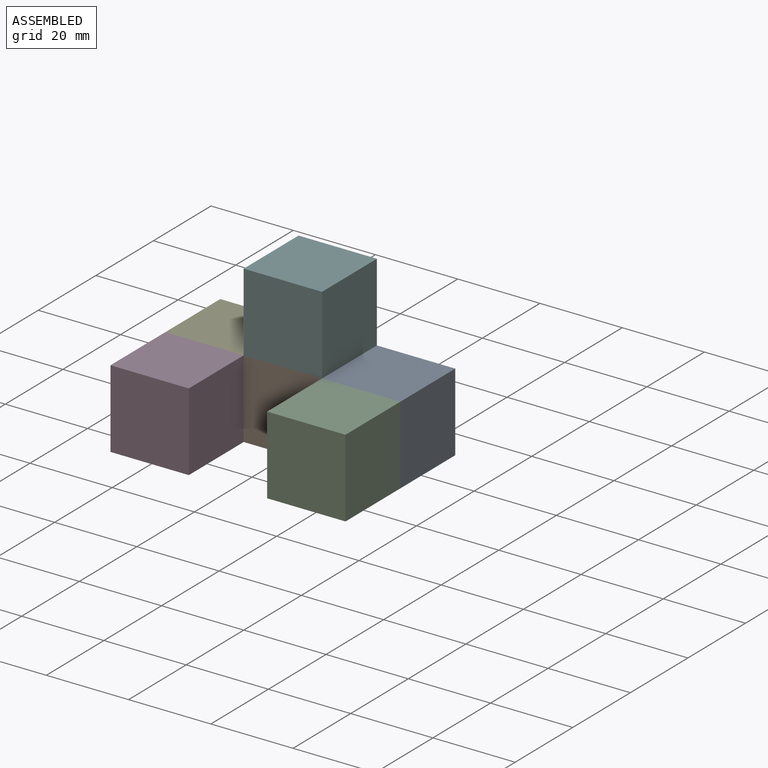
[diagram: assembled view]
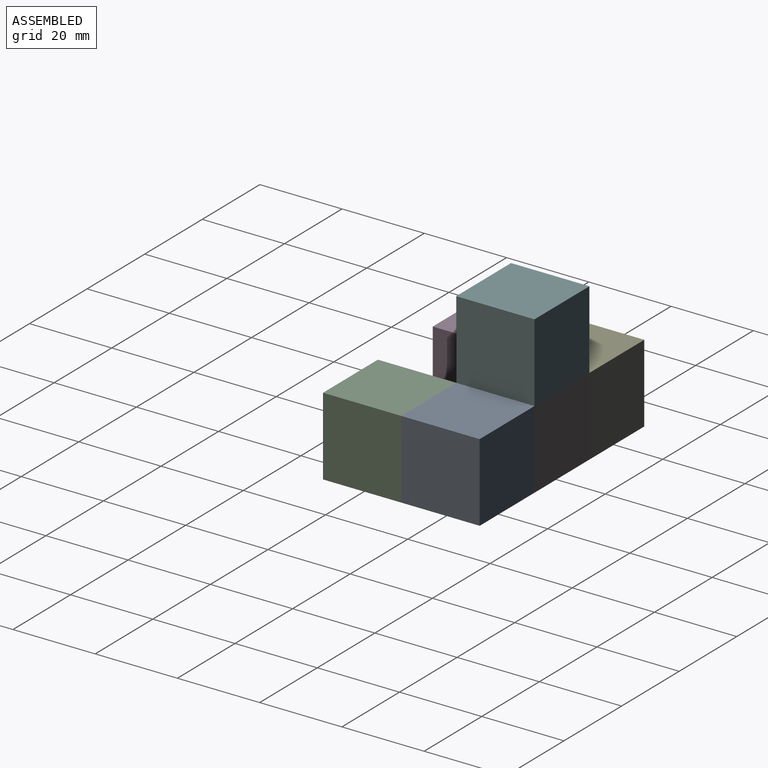
[diagram: assembled view, second angle]
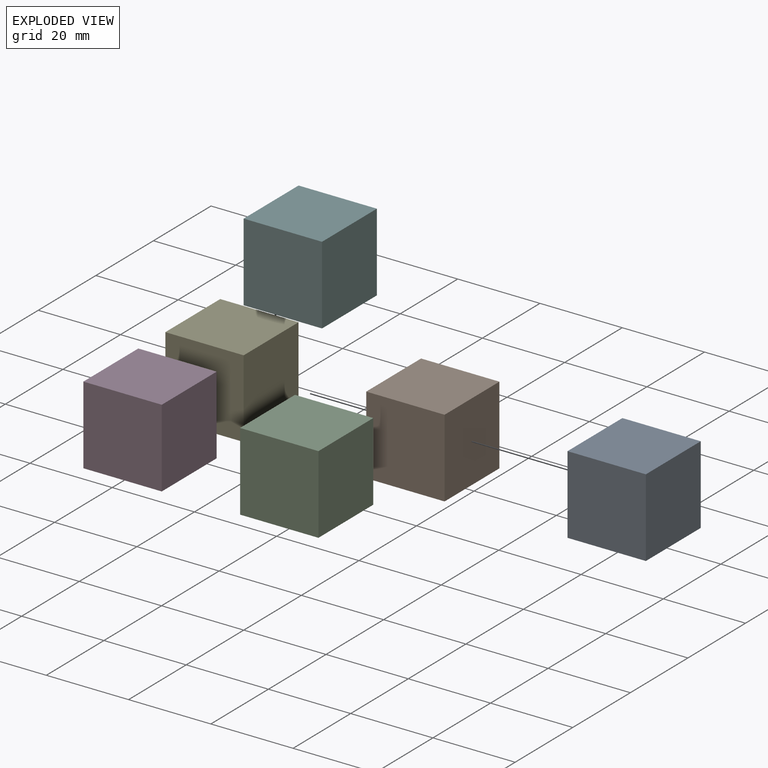
[diagram: exploded view]
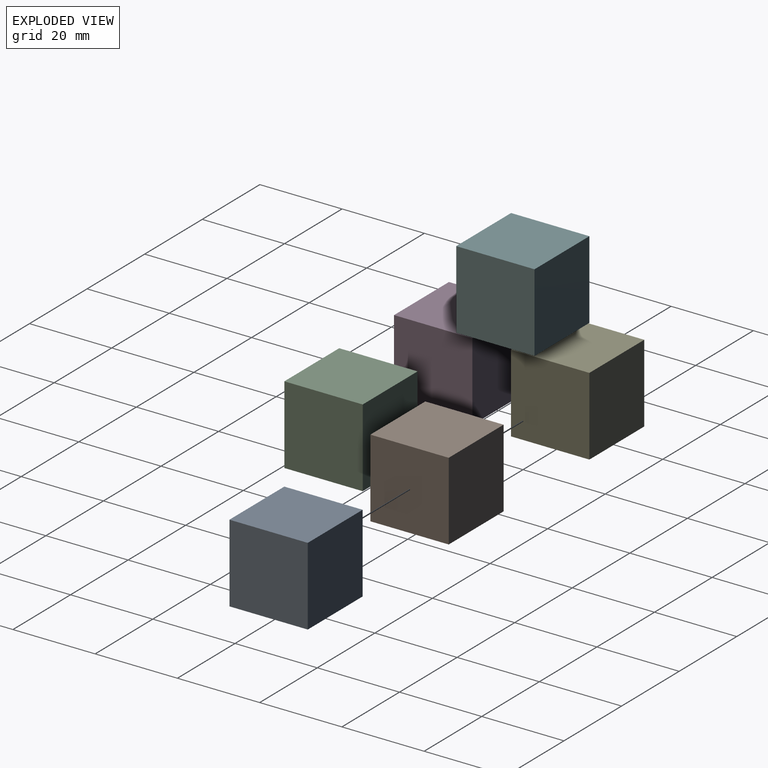
[diagram: exploded view, second angle]
ASSEMBLY  parts=6 mates=5
PART A: 6 faces, bbox 19.1x19.1x19.1 mm
  f0: plane 19.05x19.05mm, normal (0,0,-1), area 362.9mm2, adj f1,f3,f4,f5
  f1: plane 19.05x19.05mm, normal (1,0,0), area 362.9mm2, adj f0,f2,f4,f5
  f2: plane 19.05x19.05mm, normal (0,0,1), area 362.9mm2, adj f1,f3,f4,f5
  f3: plane 19.05x19.05mm, normal (-1,0,0), area 362.9mm2, adj f0,f2,f4,f5
  f4: plane 19.05x19.05mm, normal (0,-1,0), area 362.9mm2, adj f0,f1,f2,f3
  f5: plane 19.05x19.05mm, normal (0,1,0), area 362.9mm2, adj f0,f1,f2,f3
PART B: same geometry as A
PART C: same geometry as A
PART D: same geometry as A
PART E: same geometry as A
PART F: same geometry as A
PLACE A t=(19.17,9.58,-19.07)mm
PLACE B t=(0.12,9.58,-19.07)mm
PLACE C t=(19.17,-9.47,-19.07)mm
PLACE D t=(-18.93,-9.47,-19.07)mm
PLACE E t=(-18.93,9.58,-19.07)mm
PLACE F t=(0.12,9.58,-0.02)mm fixed
MATE fastened E.f4 <-> D.f5  axis (0,-1,0) through (-18.93,-9.47,-19.07)mm
MATE fastened C.f5 <-> A.f4  axis (0,1,0) through (19.17,-9.47,-19.07)mm
MATE fastened A.f3 <-> B.f1  axis (-1,0,0) through (9.65,0.06,-19.07)mm
MATE fastened F.f0 <-> B.f2  axis (0,0,-1) through (0.12,0.06,-9.54)mm
MATE fastened B.f3 <-> E.f1  axis (-1,0,0) through (-9.4,0.06,-19.07)mm
